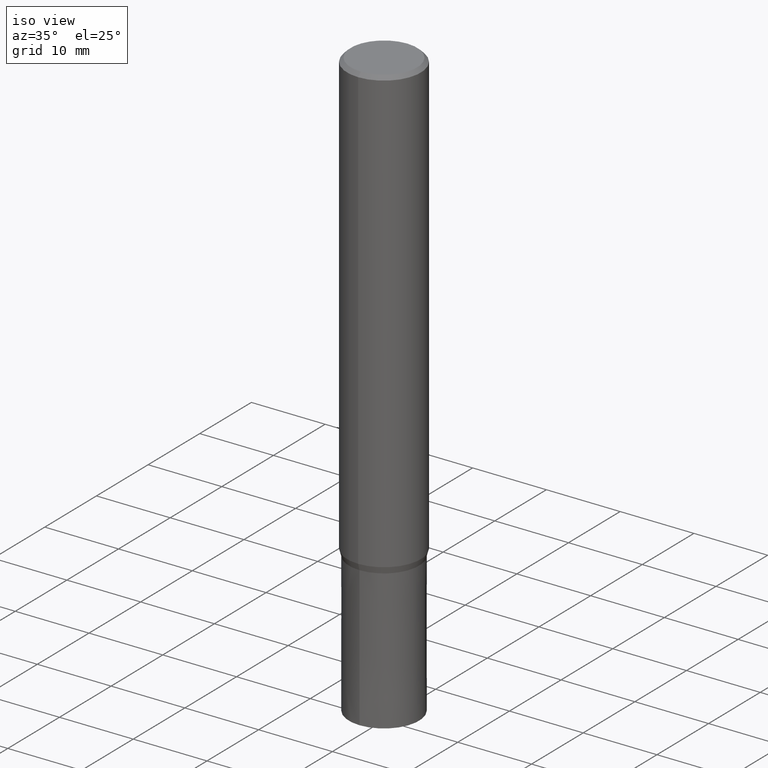
[diagram: clean part render]
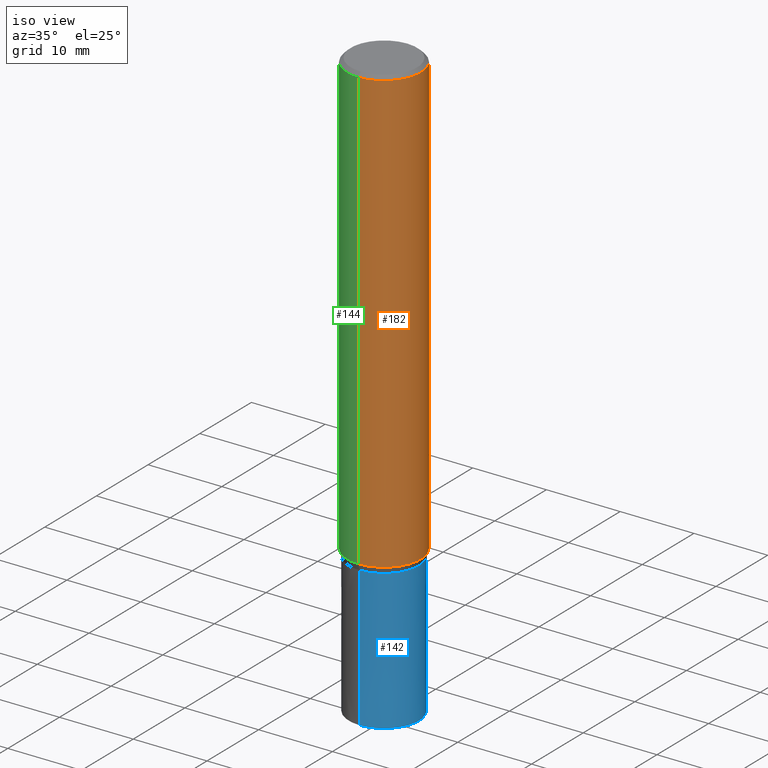
[diagram: same view with three faces highlighted in distinct colors, each labeled with its STEP entity id]
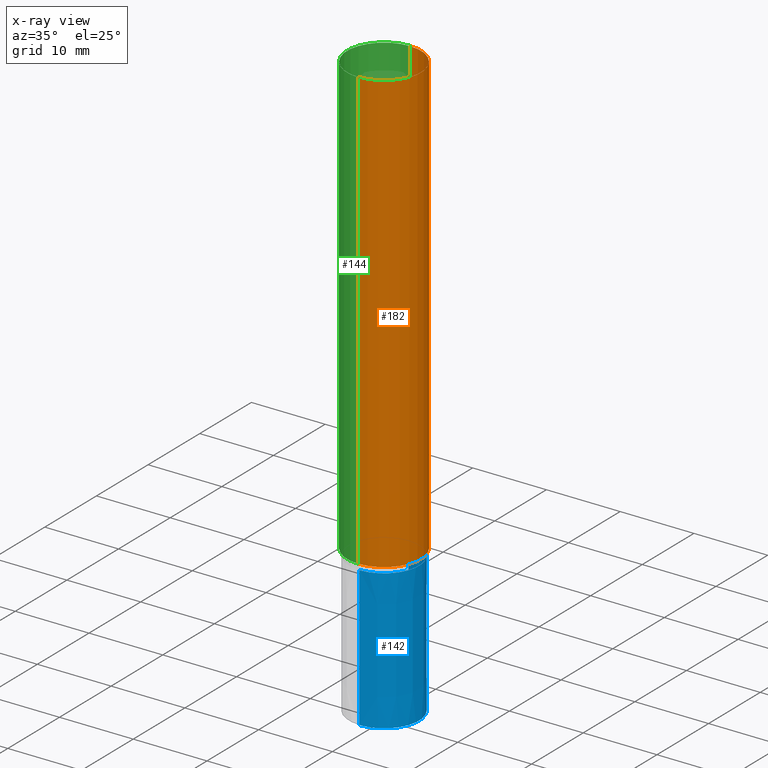
[diagram: x-ray of the same camera — body ghosted, the three highlighted faces saturated]
A machine part, iso view with three faces highlighted in distinct colors.
The next image is the same camera in x-ray (body ghosted, the three faces saturated) — at least one of them is partly hidden behind the body in this view.
Their STEP definitions:

[orange] entity #182 — the highlighted cylindrical surface (partial cylindrical patch) has radius 5 mm, axis along (-0, -0, 1).
#86=EDGE_CURVE('',#140,#146,#207,.T.);
#88=EDGE_CURVE('',#150,#118,#209,.T.);
#118=VERTEX_POINT('',#242);
#130=EDGE_CURVE('',#118,#146,#256,.T.);
#140=VERTEX_POINT('',#270);
#146=VERTEX_POINT('',#278);
#150=VERTEX_POINT('',#282);
#164=EDGE_CURVE('',#140,#150,#296,.T.);
#182=ADVANCED_FACE('',(#316),#317,.T.);
#207=CIRCLE('',#335,5.0);
#209=CIRCLE('',#338,5.0);
#242=CARTESIAN_POINT('',(6.12303176911189E-016,-5.0,-60.128));
#256=LINE('',#394,#395);
#270=CARTESIAN_POINT('',(0.0,5.0,-0.5));
#278=CARTESIAN_POINT('',(6.12303176911189E-016,-5.0,-0.5));
#282=CARTESIAN_POINT('',(0.0,5.0,-60.128));
#296=LINE('',#442,#443);
#316=FACE_OUTER_BOUND('',#470,.T.);
#317=CYLINDRICAL_SURFACE('',#471,5.0);
#335=AXIS2_PLACEMENT_3D('',#476,#477,#478);
#338=AXIS2_PLACEMENT_3D('',#479,#480,#481);
#394=CARTESIAN_POINT('',(6.12303176911189E-016,-5.0,-30.314));
#395=VECTOR('',#539,1.0);
#442=CARTESIAN_POINT('',(-6.12303176911189E-016,5.0,-30.314));
#443=VECTOR('',#594,1.0);
#470=EDGE_LOOP('',(#614,#615,#616,#617));
#471=AXIS2_PLACEMENT_3D('',#618,#619,#620);
#476=CARTESIAN_POINT('',(0.0,0.0,-0.5));
#477=DIRECTION('',(0.0,0.0,-1.0));
#478=DIRECTION('',(0.0,1.0,0.0));
#479=CARTESIAN_POINT('',(0.0,0.0,-60.128));
#480=DIRECTION('',(0.0,0.0,-1.0));
#481=DIRECTION('',(0.0,1.0,0.0));
#539=DIRECTION('',(-0.0,-0.0,1.0));
#594=DIRECTION('',(0.0,0.0,-1.0));
#614=ORIENTED_EDGE('',*,*,#164,.F.);
#615=ORIENTED_EDGE('',*,*,#86,.T.);
#616=ORIENTED_EDGE('',*,*,#130,.F.);
#617=ORIENTED_EDGE('',*,*,#88,.F.);
#618=CARTESIAN_POINT('',(0.0,0.0,-30.314));
#619=DIRECTION('',(-0.0,-0.0,1.0));
#620=DIRECTION('',(0.0,1.0,0.0));

[blue] entity #142 — the highlighted conical surface has half-angle 0 deg.
#94=VERTEX_POINT('',#215);
#96=EDGE_CURVE('',#152,#94,#217,.T.);
#102=VERTEX_POINT('',#224);
#128=EDGE_CURVE('',#94,#170,#254,.T.);
#142=ADVANCED_FACE('',(#272),#273,.T.);
#152=VERTEX_POINT('',#284);
#154=EDGE_CURVE('',#102,#152,#286,.T.);
#170=VERTEX_POINT('',#304);
#178=EDGE_CURVE('',#102,#170,#312,.T.);
#215=CARTESIAN_POINT('',(5.81688018065629E-016,-4.75,-80.0));
#217=CIRCLE('',#348,4.75);
#224=CARTESIAN_POINT('',(0.0,4.7499,-61.0));
#254=LINE('',#390,#391);
#272=FACE_OUTER_BOUND('',#411,.T.);
#273=CONICAL_SURFACE('',#412,4.74995,5.26315789467598E-006);
#284=CARTESIAN_POINT('',(0.0,4.75,-80.0));
#286=LINE('',#427,#428);
#304=CARTESIAN_POINT('',(5.81675772002091E-016,-4.7499,-61.0));
#312=CIRCLE('',#464,4.7499);
#348=AXIS2_PLACEMENT_3D('',#485,#486,#487);
#390=CARTESIAN_POINT('',(5.8168189503386E-016,-4.74995,-70.5));
#391=VECTOR('',#538,1.0);
#411=EDGE_LOOP('',(#567,#568,#569,#570));
#412=AXIS2_PLACEMENT_3D('',#571,#572,#573);
#427=CARTESIAN_POINT('',(-5.8168189503386E-016,4.74995,-70.5));
#428=VECTOR('',#585,1.0);
#464=AXIS2_PLACEMENT_3D('',#609,#610,#611);
#485=CARTESIAN_POINT('',(0.0,0.0,-80.0));
#486=DIRECTION('',(0.0,0.0,-1.0));
#487=DIRECTION('',(0.0,1.0,0.0));
#538=DIRECTION('',(-6.44529659896085E-022,5.26315789465168E-006,0.99999999998615));
#567=ORIENTED_EDGE('',*,*,#154,.F.);
#568=ORIENTED_EDGE('',*,*,#178,.T.);
#569=ORIENTED_EDGE('',*,*,#128,.F.);
#570=ORIENTED_EDGE('',*,*,#96,.F.);
#571=CARTESIAN_POINT('',(0.0,0.0,-70.5));
#572=DIRECTION('',(0.0,-0.0,-1.0));
#573=DIRECTION('',(0.0,1.0,0.0));
#585=DIRECTION('',(-6.44529659896086E-022,5.26315789465168E-006,-0.99999999998615));
#609=CARTESIAN_POINT('',(0.0,0.0,-61.0));
#610=DIRECTION('',(0.0,0.0,-1.0));
#611=DIRECTION('',(0.0,1.0,0.0));

[green] entity #144 — the highlighted cylindrical surface (partial cylindrical patch) has radius 5 mm, axis along (-0, -0, 1).
#118=VERTEX_POINT('',#242);
#130=EDGE_CURVE('',#118,#146,#256,.T.);
#140=VERTEX_POINT('',#270);
#144=ADVANCED_FACE('',(#275),#276,.T.);
#146=VERTEX_POINT('',#278);
#148=EDGE_CURVE('',#146,#140,#280,.T.);
#150=VERTEX_POINT('',#282);
#164=EDGE_CURVE('',#140,#150,#296,.T.);
#166=EDGE_CURVE('',#118,#150,#298,.T.);
#242=CARTESIAN_POINT('',(6.12303176911189E-016,-5.0,-60.128));
#256=LINE('',#394,#395);
#270=CARTESIAN_POINT('',(0.0,5.0,-0.5));
#275=FACE_OUTER_BOUND('',#414,.T.);
#276=CYLINDRICAL_SURFACE('',#415,5.0);
#278=CARTESIAN_POINT('',(6.12303176911189E-016,-5.0,-0.5));
#280=CIRCLE('',#420,5.0);
#282=CARTESIAN_POINT('',(0.0,5.0,-60.128));
#296=LINE('',#442,#443);
#298=CIRCLE('',#446,5.0);
#394=CARTESIAN_POINT('',(6.12303176911189E-016,-5.0,-30.314));
#395=VECTOR('',#539,1.0);
#414=EDGE_LOOP('',(#575,#576,#577,#578));
#415=AXIS2_PLACEMENT_3D('',#579,#580,#581);
#420=AXIS2_PLACEMENT_3D('',#582,#583,#584);
#442=CARTESIAN_POINT('',(-6.12303176911189E-016,5.0,-30.314));
#443=VECTOR('',#594,1.0);
#446=AXIS2_PLACEMENT_3D('',#595,#596,#597);
#539=DIRECTION('',(-0.0,-0.0,1.0));
#575=ORIENTED_EDGE('',*,*,#164,.T.);
#576=ORIENTED_EDGE('',*,*,#166,.F.);
#577=ORIENTED_EDGE('',*,*,#130,.T.);
#578=ORIENTED_EDGE('',*,*,#148,.T.);
#579=CARTESIAN_POINT('',(0.0,0.0,-30.314));
#580=DIRECTION('',(-0.0,-0.0,1.0));
#581=DIRECTION('',(0.0,1.0,0.0));
#582=CARTESIAN_POINT('',(0.0,0.0,-0.5));
#583=DIRECTION('',(0.0,0.0,-1.0));
#584=DIRECTION('',(0.0,1.0,0.0));
#594=DIRECTION('',(0.0,0.0,-1.0));
#595=CARTESIAN_POINT('',(0.0,0.0,-60.128));
#596=DIRECTION('',(0.0,0.0,-1.0));
#597=DIRECTION('',(0.0,1.0,0.0));